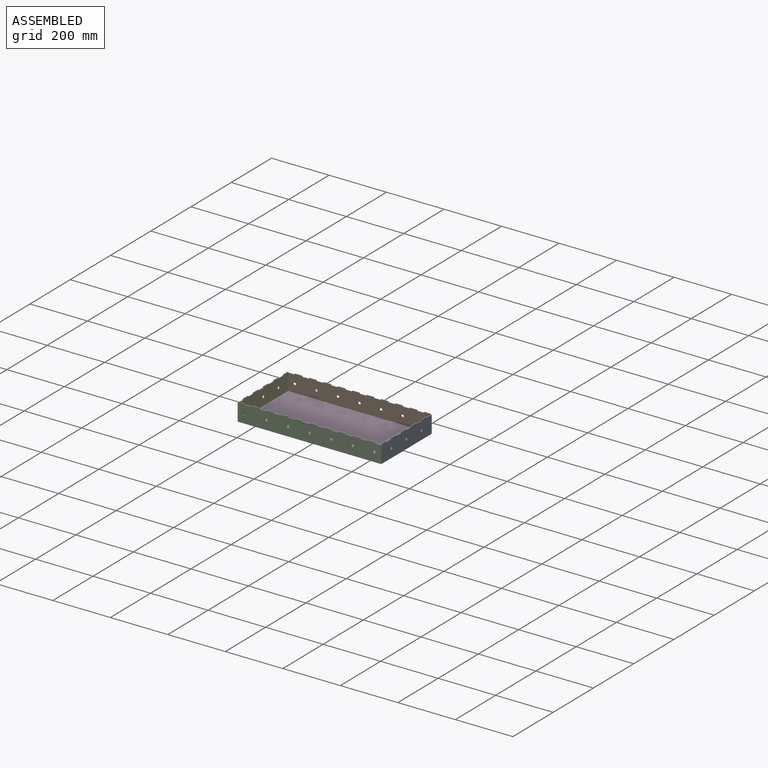
[diagram: assembled view]
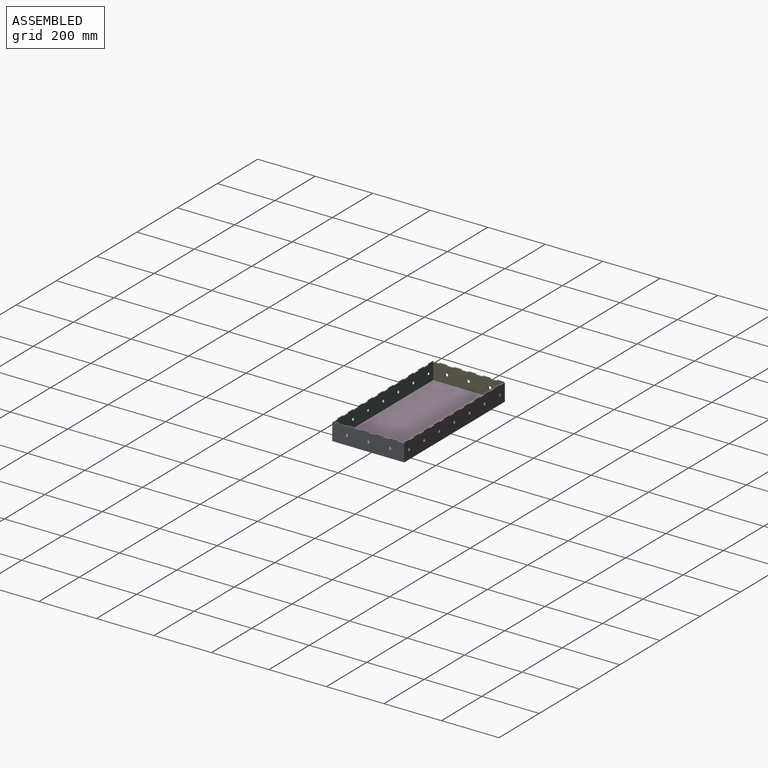
[diagram: assembled view, second angle]
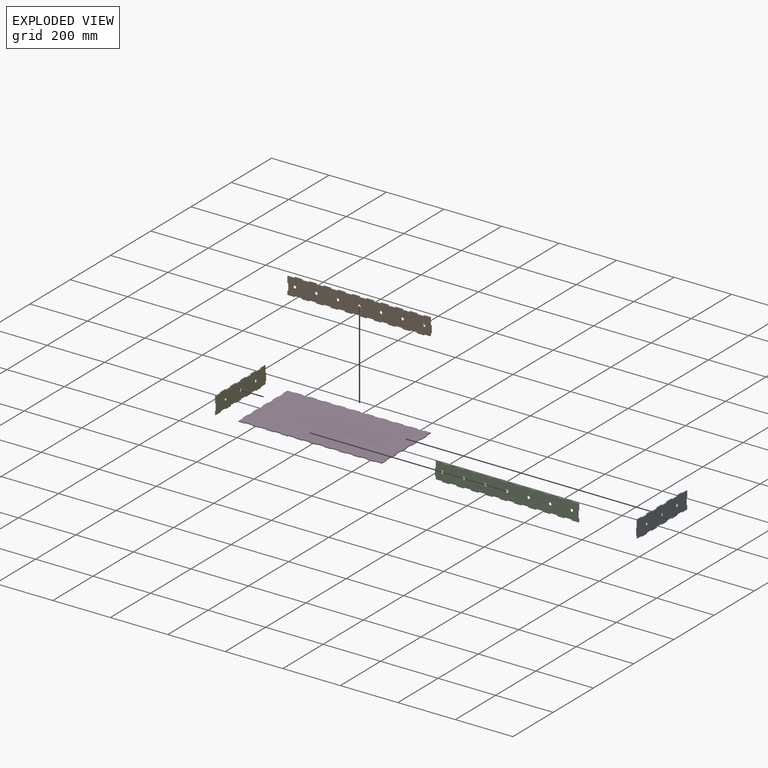
[diagram: exploded view]
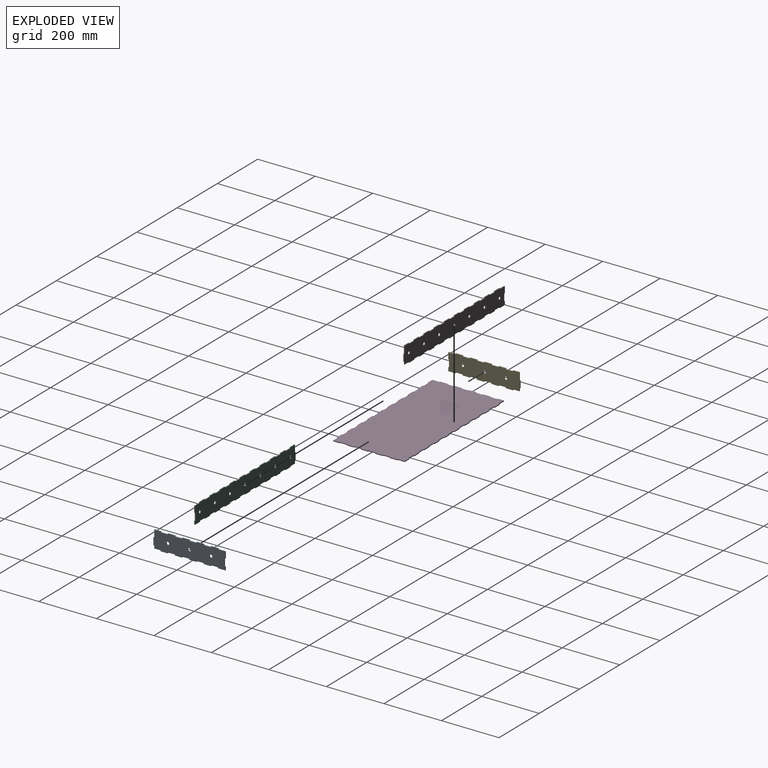
[diagram: exploded view, second angle]
ASSEMBLY  parts=5 mates=6
PART A: 53 faces, bbox 250x62.5x3 mm
  f0: plane 250x62.5mm, normal (0,0,1), area 14460.9mm2, adj f2,f3,f4,f5,f6,f7,f8,f9
  f1: plane 250x62.5mm, normal (0,0,-1), area 14460.9mm2, adj f2,f3,f4,f5,f6,f7,f8,f9
  f2: plane 25x3mm, normal (-1,0,0), area 75mm2, adj f0,f1,f46,f48
  f3: plane 25x3mm, normal (0,1,0), area 75mm2, adj f0,f1,f42,f44
  f4: plane 25x3mm, normal (0,1,0), area 75mm2, adj f0,f1,f39,f41
  f5: plane 25x3mm, normal (0,1,0), area 75mm2, adj f0,f1,f36,f38
  f6: plane 25x3mm, normal (0,1,0), area 75mm2, adj f0,f1,f33,f35
  f7: plane 22x3mm, normal (1,0,0), area 66mm2, adj f0,f1,f28,f29
  f8: plane 25x3mm, normal (0,-1,0), area 75mm2, adj f0,f1,f25,f27
  f9: plane 25x3mm, normal (0,-1,0), area 75mm2, adj f0,f1,f22,f24
  f10: plane 25x3mm, normal (0,-1,0), area 75mm2, adj f0,f1,f19,f21
  f11: plane 25x3mm, normal (0,-1,0), area 75mm2, adj f0,f1,f16,f18
  f12: plane 22x3mm, normal (0,-1,0), area 66mm2, adj f0,f1,f15,f47
  f13: plane 12.5x3mm, normal (1,0,0), area 37.5mm2, adj f0,f1,f14,f30
  f14: plane 25x3mm, normal (0,1,0), area 75mm2, adj f0,f1,f13,f32
  f15: plane 3x3mm, normal (1,0,0), area 9mm2, adj f0,f1,f12,f17
  f16: plane 3x3mm, normal (-1,0,0), area 9mm2, adj f0,f1,f11,f17
  f17: plane 25x3mm, normal (0,-1,0), area 75mm2, adj f0,f1,f15,f16
  f18: plane 3x3mm, normal (1,0,0), area 9mm2, adj f0,f1,f11,f20
  f19: plane 3x3mm, normal (-1,0,0), area 9mm2, adj f0,f1,f10,f20
  f20: plane 25x3mm, normal (0,-1,0), area 75mm2, adj f0,f1,f18,f19
  f21: plane 3x3mm, normal (1,0,0), area 9mm2, adj f0,f1,f10,f23
  f22: plane 3x3mm, normal (-1,0,0), area 9mm2, adj f0,f1,f9,f23
  f23: plane 25x3mm, normal (0,-1,0), area 75mm2, adj f0,f1,f21,f22
  f24: plane 3x3mm, normal (1,0,0), area 9mm2, adj f0,f1,f9,f26
  f25: plane 3x3mm, normal (-1,0,0), area 9mm2, adj f0,f1,f8,f26
  f26: plane 25x3mm, normal (0,-1,0), area 75mm2, adj f0,f1,f24,f25
  f27: plane 3x3mm, normal (1,0,0), area 9mm2, adj f0,f1,f8,f28
  f28: plane 25x3mm, normal (0,-1,0), area 75mm2, adj f0,f1,f7,f27
  f29: plane 3x3mm, normal (0,1,0), area 9mm2, adj f0,f1,f7,f31
  f30: plane 3x3mm, normal (0,-1,0), area 9mm2, adj f0,f1,f13,f31
  f31: plane 25x3mm, normal (1,0,0), area 75mm2, adj f0,f1,f29,f30
  f32: plane 3x3mm, normal (-1,0,0), area 9mm2, adj f0,f1,f14,f34
  f33: plane 3x3mm, normal (1,0,0), area 9mm2, adj f0,f1,f6,f34
  f34: plane 25x3mm, normal (0,1,0), area 75mm2, adj f0,f1,f32,f33
  f35: plane 3x3mm, normal (-1,0,0), area 9mm2, adj f0,f1,f6,f37
  f36: plane 3x3mm, normal (1,0,0), area 9mm2, adj f0,f1,f5,f37
  f37: plane 25x3mm, normal (0,1,0), area 75mm2, adj f0,f1,f35,f36
  f38: plane 3x3mm, normal (-1,0,0), area 9mm2, adj f0,f1,f5,f40
  f39: plane 3x3mm, normal (1,0,0), area 9mm2, adj f0,f1,f4,f40
  f40: plane 25x3mm, normal (0,1,0), area 75mm2, adj f0,f1,f38,f39
  f41: plane 3x3mm, normal (-1,0,0), area 9mm2, adj f0,f1,f4,f43
  f42: plane 3x3mm, normal (1,0,0), area 9mm2, adj f0,f1,f3,f43
  f43: plane 25x3mm, normal (0,1,0), area 75mm2, adj f0,f1,f41,f42
  f44: plane 3x3mm, normal (-1,0,0), area 9mm2, adj f0,f1,f3,f45
  f45: plane 22x3mm, normal (0,1,0), area 66mm2, adj f0,f1,f44,f49
  f46: plane 3x3mm, normal (0,-1,0), area 9mm2, adj f0,f1,f2,f47
  f47: plane 25x3mm, normal (-1,0,0), area 75mm2, adj f0,f1,f12,f46
  f48: plane 3x3mm, normal (0,1,0), area 9mm2, adj f0,f1,f2,f49
  f49: plane 9.5x3mm, normal (-1,0,0), area 28.5mm2, adj f0,f1,f45,f48
  f50: cylinder r=5mm len=10mm, axis (0,0,1), area 94.2mm2, adj f0,f1
  f51: cylinder r=5mm len=10mm, axis (0,0,1), area 94.2mm2, adj f0,f1
  f52: cylinder r=5mm len=10mm, axis (0,0,1), area 94.2mm2, adj f0,f1
PART B: 97 faces, bbox 500x62.5x3 mm
  f0: plane 500x62.5mm, normal (0,0,1), area 29021.7mm2, adj f2,f3,f4,f5,f6,f7,f8,f9
  f1: plane 500x62.5mm, normal (0,0,-1), area 29021.7mm2, adj f2,f3,f4,f5,f6,f7,f8,f9
  f2: plane 25x3mm, normal (-1,0,0), area 75mm2, adj f0,f1,f86,f88
  f3: plane 25x3mm, normal (0,1,0), area 75mm2, adj f0,f1,f82,f84
  f4: plane 25x3mm, normal (0,1,0), area 75mm2, adj f0,f1,f79,f81
  f5: plane 25x3mm, normal (0,1,0), area 75mm2, adj f0,f1,f76,f78
  f6: plane 25x3mm, normal (0,1,0), area 75mm2, adj f0,f1,f73,f75
  f7: plane 25x3mm, normal (0,1,0), area 75mm2, adj f0,f1,f70,f72
  f8: plane 25x3mm, normal (0,1,0), area 75mm2, adj f0,f1,f67,f69
  f9: plane 25x3mm, normal (0,1,0), area 75mm2, adj f0,f1,f64,f66
  f10: plane 25x3mm, normal (0,1,0), area 75mm2, adj f0,f1,f61,f63
  f11: plane 25x3mm, normal (0,1,0), area 75mm2, adj f0,f1,f58,f60
  f12: plane 22x3mm, normal (1,0,0), area 66mm2, adj f0,f1,f53,f54
  f13: plane 25x3mm, normal (0,-1,0), area 75mm2, adj f0,f1,f50,f52
  f14: plane 25x3mm, normal (0,-1,0), area 75mm2, adj f0,f1,f47,f49
  f15: plane 25x3mm, normal (0,-1,0), area 75mm2, adj f0,f1,f44,f46
  f16: plane 25x3mm, normal (0,-1,0), area 75mm2, adj f0,f1,f41,f43
  f17: plane 25x3mm, normal (0,-1,0), area 75mm2, adj f0,f1,f38,f40
  f18: plane 25x3mm, normal (0,-1,0), area 75mm2, adj f0,f1,f35,f37
  f19: plane 25x3mm, normal (0,-1,0), area 75mm2, adj f0,f1,f32,f34
  f20: plane 25x3mm, normal (0,-1,0), area 75mm2, adj f0,f1,f29,f31
  f21: plane 25x3mm, normal (0,-1,0), area 75mm2, adj f0,f1,f26,f28
  f22: plane 22x3mm, normal (0,-1,0), area 66mm2, adj f0,f1,f25,f87
  f23: plane 12.5x3mm, normal (1,0,0), area 37.5mm2, adj f0,f1,f24,f55
  f24: plane 25x3mm, normal (0,1,0), area 75mm2, adj f0,f1,f23,f57
  f25: plane 3x3mm, normal (1,0,0), area 9mm2, adj f0,f1,f22,f27
  f26: plane 3x3mm, normal (-1,0,0), area 9mm2, adj f0,f1,f21,f27
  f27: plane 25x3mm, normal (0,-1,0), area 75mm2, adj f0,f1,f25,f26
  f28: plane 3x3mm, normal (1,0,0), area 9mm2, adj f0,f1,f21,f30
  f29: plane 3x3mm, normal (-1,0,0), area 9mm2, adj f0,f1,f20,f30
  f30: plane 25x3mm, normal (0,-1,0), area 75mm2, adj f0,f1,f28,f29
  f31: plane 3x3mm, normal (1,0,0), area 9mm2, adj f0,f1,f20,f33
  f32: plane 3x3mm, normal (-1,0,0), area 9mm2, adj f0,f1,f19,f33
  f33: plane 25x3mm, normal (0,-1,0), area 75mm2, adj f0,f1,f31,f32
  f34: plane 3x3mm, normal (1,0,0), area 9mm2, adj f0,f1,f19,f36
  f35: plane 3x3mm, normal (-1,0,0), area 9mm2, adj f0,f1,f18,f36
  f36: plane 25x3mm, normal (0,-1,0), area 75mm2, adj f0,f1,f34,f35
  f37: plane 3x3mm, normal (1,0,0), area 9mm2, adj f0,f1,f18,f39
  f38: plane 3x3mm, normal (-1,0,0), area 9mm2, adj f0,f1,f17,f39
  f39: plane 25x3mm, normal (0,-1,0), area 75mm2, adj f0,f1,f37,f38
  f40: plane 3x3mm, normal (1,0,0), area 9mm2, adj f0,f1,f17,f42
  f41: plane 3x3mm, normal (-1,0,0), area 9mm2, adj f0,f1,f16,f42
  f42: plane 25x3mm, normal (0,-1,0), area 75mm2, adj f0,f1,f40,f41
  f43: plane 3x3mm, normal (1,0,0), area 9mm2, adj f0,f1,f16,f45
  f44: plane 3x3mm, normal (-1,0,0), area 9mm2, adj f0,f1,f15,f45
  f45: plane 25x3mm, normal (0,-1,0), area 75mm2, adj f0,f1,f43,f44
  f46: plane 3x3mm, normal (1,0,0), area 9mm2, adj f0,f1,f15,f48
  f47: plane 3x3mm, normal (-1,0,0), area 9mm2, adj f0,f1,f14,f48
  f48: plane 25x3mm, normal (0,-1,0), area 75mm2, adj f0,f1,f46,f47
  f49: plane 3x3mm, normal (1,0,0), area 9mm2, adj f0,f1,f14,f51
  f50: plane 3x3mm, normal (-1,0,0), area 9mm2, adj f0,f1,f13,f51
  f51: plane 25x3mm, normal (0,-1,0), area 75mm2, adj f0,f1,f49,f50
  f52: plane 3x3mm, normal (1,0,0), area 9mm2, adj f0,f1,f13,f53
  f53: plane 25x3mm, normal (0,-1,0), area 75mm2, adj f0,f1,f12,f52
  f54: plane 3x3mm, normal (0,1,0), area 9mm2, adj f0,f1,f12,f56
  f55: plane 3x3mm, normal (0,-1,0), area 9mm2, adj f0,f1,f23,f56
  f56: plane 25x3mm, normal (1,0,0), area 75mm2, adj f0,f1,f54,f55
  f57: plane 3x3mm, normal (-1,0,0), area 9mm2, adj f0,f1,f24,f59
  f58: plane 3x3mm, normal (1,0,0), area 9mm2, adj f0,f1,f11,f59
  f59: plane 25x3mm, normal (0,1,0), area 75mm2, adj f0,f1,f57,f58
  f60: plane 3x3mm, normal (-1,0,0), area 9mm2, adj f0,f1,f11,f62
  f61: plane 3x3mm, normal (1,0,0), area 9mm2, adj f0,f1,f10,f62
  f62: plane 25x3mm, normal (0,1,0), area 75mm2, adj f0,f1,f60,f61
  f63: plane 3x3mm, normal (-1,0,0), area 9mm2, adj f0,f1,f10,f65
  f64: plane 3x3mm, normal (1,0,0), area 9mm2, adj f0,f1,f9,f65
  f65: plane 25x3mm, normal (0,1,0), area 75mm2, adj f0,f1,f63,f64
  f66: plane 3x3mm, normal (-1,0,0), area 9mm2, adj f0,f1,f9,f68
  f67: plane 3x3mm, normal (1,0,0), area 9mm2, adj f0,f1,f8,f68
  f68: plane 25x3mm, normal (0,1,0), area 75mm2, adj f0,f1,f66,f67
  f69: plane 3x3mm, normal (-1,0,0), area 9mm2, adj f0,f1,f8,f71
  f70: plane 3x3mm, normal (1,0,0), area 9mm2, adj f0,f1,f7,f71
  f71: plane 25x3mm, normal (0,1,0), area 75mm2, adj f0,f1,f69,f70
  f72: plane 3x3mm, normal (-1,0,0), area 9mm2, adj f0,f1,f7,f74
  f73: plane 3x3mm, normal (1,0,0), area 9mm2, adj f0,f1,f6,f74
  f74: plane 25x3mm, normal (0,1,0), area 75mm2, adj f0,f1,f72,f73
  f75: plane 3x3mm, normal (-1,0,0), area 9mm2, adj f0,f1,f6,f77
  f76: plane 3x3mm, normal (1,0,0), area 9mm2, adj f0,f1,f5,f77
  f77: plane 25x3mm, normal (0,1,0), area 75mm2, adj f0,f1,f75,f76
  f78: plane 3x3mm, normal (-1,0,0), area 9mm2, adj f0,f1,f5,f80
  f79: plane 3x3mm, normal (1,0,0), area 9mm2, adj f0,f1,f4,f80
  f80: plane 25x3mm, normal (0,1,0), area 75mm2, adj f0,f1,f78,f79
  f81: plane 3x3mm, normal (-1,0,0), area 9mm2, adj f0,f1,f4,f83
  f82: plane 3x3mm, normal (1,0,0), area 9mm2, adj f0,f1,f3,f83
  f83: plane 25x3mm, normal (0,1,0), area 75mm2, adj f0,f1,f81,f82
  f84: plane 3x3mm, normal (-1,0,0), area 9mm2, adj f0,f1,f3,f85
  f85: plane 22x3mm, normal (0,1,0), area 66mm2, adj f0,f1,f84,f89
  f86: plane 3x3mm, normal (0,-1,0), area 9mm2, adj f0,f1,f2,f87
  f87: plane 25x3mm, normal (-1,0,0), area 75mm2, adj f0,f1,f22,f86
  f88: plane 3x3mm, normal (0,1,0), area 9mm2, adj f0,f1,f2,f89
  f89: plane 9.5x3mm, normal (-1,0,0), area 28.5mm2, adj f0,f1,f85,f88
  f90: cylinder r=5mm len=10mm, axis (0,0,1), area 94.2mm2, adj f0,f1
  f91: cylinder r=5mm len=10mm, axis (0,0,1), area 94.2mm2, adj f0,f1
  f92: cylinder r=5mm len=10mm, axis (0,0,1), area 94.2mm2, adj f0,f1
  f93: cylinder r=5mm len=10mm, axis (0,0,1), area 94.2mm2, adj f0,f1
  f94: cylinder r=5mm len=10mm, axis (0,0,1), area 94.2mm2, adj f0,f1
  f95: cylinder r=5mm len=10mm, axis (0,0,1), area 94.2mm2, adj f0,f1
  f96: cylinder r=5mm len=10mm, axis (0,0,1), area 94.2mm2, adj f0,f1
PART C: same geometry as B
PART D: 118 faces, bbox 500x250x3 mm
  f0: plane 25x3mm, normal (-1,0,0), area 75mm2, adj f1,f5,f112,f116
  f1: plane 500x250mm, normal (0,0,1), area 122750mm2, adj f0,f2,f3,f4,f6,f7,f8,f9
  f2: plane 25x3mm, normal (-1,0,0), area 75mm2, adj f1,f5,f109,f113
  f3: plane 25x3mm, normal (-1,0,0), area 75mm2, adj f1,f5,f106,f110
  f4: plane 25x3mm, normal (-1,0,0), area 75mm2, adj f1,f5,f104,f107
  f5: plane 500x250mm, normal (0,0,-1), area 122750mm2, adj f0,f2,f3,f4,f6,f7,f8,f9
  f6: plane 22x3mm, normal (-1,0,0), area 66mm2, adj f1,f5,f103,f115
  f7: plane 25x3mm, normal (0,1,0), area 75mm2, adj f1,f5,f100,f102
  f8: plane 25x3mm, normal (0,1,0), area 75mm2, adj f1,f5,f97,f99
  f9: plane 25x3mm, normal (0,1,0), area 75mm2, adj f1,f5,f94,f96
  f10: plane 25x3mm, normal (0,1,0), area 75mm2, adj f1,f5,f91,f93
  f11: plane 25x3mm, normal (0,1,0), area 75mm2, adj f1,f5,f88,f90
  f12: plane 25x3mm, normal (0,1,0), area 75mm2, adj f1,f5,f85,f87
  f13: plane 25x3mm, normal (0,1,0), area 75mm2, adj f1,f5,f82,f84
  f14: plane 25x3mm, normal (0,1,0), area 75mm2, adj f1,f5,f79,f81
  f15: plane 25x3mm, normal (0,1,0), area 75mm2, adj f1,f5,f76,f78
  f16: plane 25x3mm, normal (1,0,0), area 75mm2, adj f1,f5,f71,f73
  f17: plane 22x3mm, normal (0,1,0), area 66mm2, adj f1,f5,f74,f75
  f18: plane 25x3mm, normal (1,0,0), area 75mm2, adj f1,f5,f68,f70
  f19: plane 25x3mm, normal (1,0,0), area 75mm2, adj f1,f5,f65,f67
  f20: plane 25x3mm, normal (1,0,0), area 75mm2, adj f1,f5,f62,f64
  f21: plane 22x3mm, normal (1,0,0), area 66mm2, adj f1,f5,f60,f61
  f22: plane 25x3mm, normal (0,-1,0), area 75mm2, adj f1,f5,f57,f59
  f23: plane 25x3mm, normal (0,-1,0), area 75mm2, adj f1,f5,f54,f56
  f24: plane 25x3mm, normal (0,-1,0), area 75mm2, adj f1,f5,f51,f53
  f25: plane 25x3mm, normal (0,-1,0), area 75mm2, adj f1,f5,f48,f50
  f26: plane 25x3mm, normal (0,-1,0), area 75mm2, adj f1,f5,f45,f47
  f27: plane 25x3mm, normal (0,-1,0), area 75mm2, adj f1,f5,f42,f44
  f28: plane 25x3mm, normal (0,-1,0), area 75mm2, adj f1,f5,f39,f41
  f29: plane 25x3mm, normal (0,-1,0), area 75mm2, adj f1,f5,f36,f38
  f30: plane 25x3mm, normal (0,-1,0), area 75mm2, adj f1,f5,f33,f35
  f31: plane 22x3mm, normal (0,-1,0), area 66mm2, adj f1,f5,f32,f105
  f32: plane 3x3mm, normal (1,0,0), area 9mm2, adj f1,f5,f31,f34
  f33: plane 3x3mm, normal (-1,0,0), area 9mm2, adj f1,f5,f30,f34
  f34: plane 25x3mm, normal (0,-1,0), area 75mm2, adj f1,f5,f32,f33
  f35: plane 3x3mm, normal (1,0,0), area 9mm2, adj f1,f5,f30,f37
  f36: plane 3x3mm, normal (-1,0,0), area 9mm2, adj f1,f5,f29,f37
  f37: plane 25x3mm, normal (0,-1,0), area 75mm2, adj f1,f5,f35,f36
  f38: plane 3x3mm, normal (1,0,0), area 9mm2, adj f1,f5,f29,f40
  f39: plane 3x3mm, normal (-1,0,0), area 9mm2, adj f1,f5,f28,f40
  f40: plane 25x3mm, normal (0,-1,0), area 75mm2, adj f1,f5,f38,f39
  f41: plane 3x3mm, normal (1,0,0), area 9mm2, adj f1,f5,f28,f43
  f42: plane 3x3mm, normal (-1,0,0), area 9mm2, adj f1,f5,f27,f43
  f43: plane 25x3mm, normal (0,-1,0), area 75mm2, adj f1,f5,f41,f42
  f44: plane 3x3mm, normal (1,0,0), area 9mm2, adj f1,f5,f27,f46
  f45: plane 3x3mm, normal (-1,0,0), area 9mm2, adj f1,f5,f26,f46
  f46: plane 25x3mm, normal (0,-1,0), area 75mm2, adj f1,f5,f44,f45
  f47: plane 3x3mm, normal (1,0,0), area 9mm2, adj f1,f5,f26,f49
  f48: plane 3x3mm, normal (-1,0,0), area 9mm2, adj f1,f5,f25,f49
  f49: plane 25x3mm, normal (0,-1,0), area 75mm2, adj f1,f5,f47,f48
  f50: plane 3x3mm, normal (1,0,0), area 9mm2, adj f1,f5,f25,f52
  f51: plane 3x3mm, normal (-1,0,0), area 9mm2, adj f1,f5,f24,f52
  f52: plane 25x3mm, normal (0,-1,0), area 75mm2, adj f1,f5,f50,f51
  f53: plane 3x3mm, normal (1,0,0), area 9mm2, adj f1,f5,f24,f55
  f54: plane 3x3mm, normal (-1,0,0), area 9mm2, adj f1,f5,f23,f55
  f55: plane 25x3mm, normal (0,-1,0), area 75mm2, adj f1,f5,f53,f54
  f56: plane 3x3mm, normal (1,0,0), area 9mm2, adj f1,f5,f23,f58
  f57: plane 3x3mm, normal (-1,0,0), area 9mm2, adj f1,f5,f22,f58
  f58: plane 25x3mm, normal (0,-1,0), area 75mm2, adj f1,f5,f56,f57
  f59: plane 3x3mm, normal (1,0,0), area 9mm2, adj f1,f5,f22,f60
  f60: plane 25x3mm, normal (0,-1,0), area 75mm2, adj f1,f5,f21,f59
  f61: plane 3x3mm, normal (0,1,0), area 9mm2, adj f1,f5,f21,f63
  f62: plane 3x3mm, normal (0,-1,0), area 9mm2, adj f1,f5,f20,f63
  f63: plane 25x3mm, normal (1,0,0), area 75mm2, adj f1,f5,f61,f62
  f64: plane 3x3mm, normal (0,1,0), area 9mm2, adj f1,f5,f20,f66
  f65: plane 3x3mm, normal (0,-1,0), area 9mm2, adj f1,f5,f19,f66
  f66: plane 25x3mm, normal (1,0,0), area 75mm2, adj f1,f5,f64,f65
  f67: plane 3x3mm, normal (0,1,0), area 9mm2, adj f1,f5,f19,f69
  f68: plane 3x3mm, normal (0,-1,0), area 9mm2, adj f1,f5,f18,f69
  f69: plane 25x3mm, normal (1,0,0), area 75mm2, adj f1,f5,f67,f68
  f70: plane 3x3mm, normal (0,1,0), area 9mm2, adj f1,f5,f18,f72
  f71: plane 3x3mm, normal (0,-1,0), area 9mm2, adj f1,f5,f16,f72
  f72: plane 25x3mm, normal (1,0,0), area 75mm2, adj f1,f5,f70,f71
  f73: plane 3x3mm, normal (0,1,0), area 9mm2, adj f1,f5,f16,f74
  f74: plane 25x3mm, normal (1,0,0), area 75mm2, adj f1,f5,f17,f73
  f75: plane 3x3mm, normal (-1,0,0), area 9mm2, adj f1,f5,f17,f77
  f76: plane 3x3mm, normal (1,0,0), area 9mm2, adj f1,f5,f15,f77
  f77: plane 25x3mm, normal (0,1,0), area 75mm2, adj f1,f5,f75,f76
  f78: plane 3x3mm, normal (-1,0,0), area 9mm2, adj f1,f5,f15,f80
  f79: plane 3x3mm, normal (1,0,0), area 9mm2, adj f1,f5,f14,f80
  f80: plane 25x3mm, normal (0,1,0), area 75mm2, adj f1,f5,f78,f79
  f81: plane 3x3mm, normal (-1,0,0), area 9mm2, adj f1,f5,f14,f83
  f82: plane 3x3mm, normal (1,0,0), area 9mm2, adj f1,f5,f13,f83
  f83: plane 25x3mm, normal (0,1,0), area 75mm2, adj f1,f5,f81,f82
  f84: plane 3x3mm, normal (-1,0,0), area 9mm2, adj f1,f5,f13,f86
  f85: plane 3x3mm, normal (1,0,0), area 9mm2, adj f1,f5,f12,f86
  f86: plane 25x3mm, normal (0,1,0), area 75mm2, adj f1,f5,f84,f85
  f87: plane 3x3mm, normal (-1,0,0), area 9mm2, adj f1,f5,f12,f89
  f88: plane 3x3mm, normal (1,0,0), area 9mm2, adj f1,f5,f11,f89
  f89: plane 25x3mm, normal (0,1,0), area 75mm2, adj f1,f5,f87,f88
  f90: plane 3x3mm, normal (-1,0,0), area 9mm2, adj f1,f5,f11,f92
  f91: plane 3x3mm, normal (1,0,0), area 9mm2, adj f1,f5,f10,f92
  f92: plane 25x3mm, normal (0,1,0), area 75mm2, adj f1,f5,f90,f91
  f93: plane 3x3mm, normal (-1,0,0), area 9mm2, adj f1,f5,f10,f95
  f94: plane 3x3mm, normal (1,0,0), area 9mm2, adj f1,f5,f9,f95
  f95: plane 25x3mm, normal (0,1,0), area 75mm2, adj f1,f5,f93,f94
  f96: plane 3x3mm, normal (-1,0,0), area 9mm2, adj f1,f5,f9,f98
  f97: plane 3x3mm, normal (1,0,0), area 9mm2, adj f1,f5,f8,f98
  f98: plane 25x3mm, normal (0,1,0), area 75mm2, adj f1,f5,f96,f97
  f99: plane 3x3mm, normal (-1,0,0), area 9mm2, adj f1,f5,f8,f101
  f100: plane 3x3mm, normal (1,0,0), area 9mm2, adj f1,f5,f7,f101
  f101: plane 25x3mm, normal (0,1,0), area 75mm2, adj f1,f5,f99,f100
  f102: plane 3x3mm, normal (-1,0,0), area 9mm2, adj f1,f5,f7,f103
  f103: plane 25x3mm, normal (0,1,0), area 75mm2, adj f1,f5,f6,f102
  f104: plane 3x3mm, normal (0,-1,0), area 9mm2, adj f1,f4,f5,f105
  f105: plane 25x3mm, normal (-1,0,0), area 75mm2, adj f1,f5,f31,f104
  f106: plane 3x3mm, normal (0,-1,0), area 9mm2, adj f1,f3,f5,f108
  f107: plane 3x3mm, normal (0,1,0), area 9mm2, adj f1,f4,f5,f108
  f108: plane 25x3mm, normal (-1,0,0), area 75mm2, adj f1,f5,f106,f107
  f109: plane 3x3mm, normal (0,-1,0), area 9mm2, adj f1,f2,f5,f111
  f110: plane 3x3mm, normal (0,1,0), area 9mm2, adj f1,f3,f5,f111
  f111: plane 25x3mm, normal (-1,0,0), area 75mm2, adj f1,f5,f109,f110
  f112: plane 3x3mm, normal (0,-1,0), area 9mm2, adj f0,f1,f5,f114
  f113: plane 3x3mm, normal (0,1,0), area 9mm2, adj f1,f2,f5,f114
  f114: plane 25x3mm, normal (-1,0,0), area 75mm2, adj f1,f5,f112,f113
  f115: plane 3x3mm, normal (0,-1,0), area 9mm2, adj f1,f5,f6,f117
  f116: plane 3x3mm, normal (0,1,0), area 9mm2, adj f0,f1,f5,f117
  f117: plane 25x3mm, normal (-1,0,0), area 75mm2, adj f1,f5,f115,f116
PART E: same geometry as A
PLACE A rot(axis=(-0.58,-0.58,0.58),120deg) t=(248.5,0,29.75)mm
PLACE B rot(axis=(0,-0.71,0.71),180deg) t=(0,123.5,29.75)mm
PLACE C rot(axis=(-1,0,0),90deg) t=(0,-123.5,29.75)mm
PLACE D at identity fixed
PLACE E rot(axis=(-0.58,0.58,-0.58),120deg) t=(-248.5,0,29.75)mm
MATE planar A.f0 <-> D.f63  axis (-1,0,0) through (247,0.24,29.73)mm
MATE planar C.f84 <-> D.f32  axis (-1,0,0) through (-225,-123.5,0)mm
MATE planar A.f44 <-> D.f61  axis (0,-1,0) through (248.5,-100,0)mm
MATE planar C.f0 <-> D.f34  axis (0,1,0) through (0.24,-122,29.74)mm
MATE planar C.f85 <-> D.f1  axis (0,0,-1) through (-236,-123.5,1.5)mm
MATE planar A.f45 <-> D.f1  axis (0,0,-1) through (248.5,-111,1.5)mm
